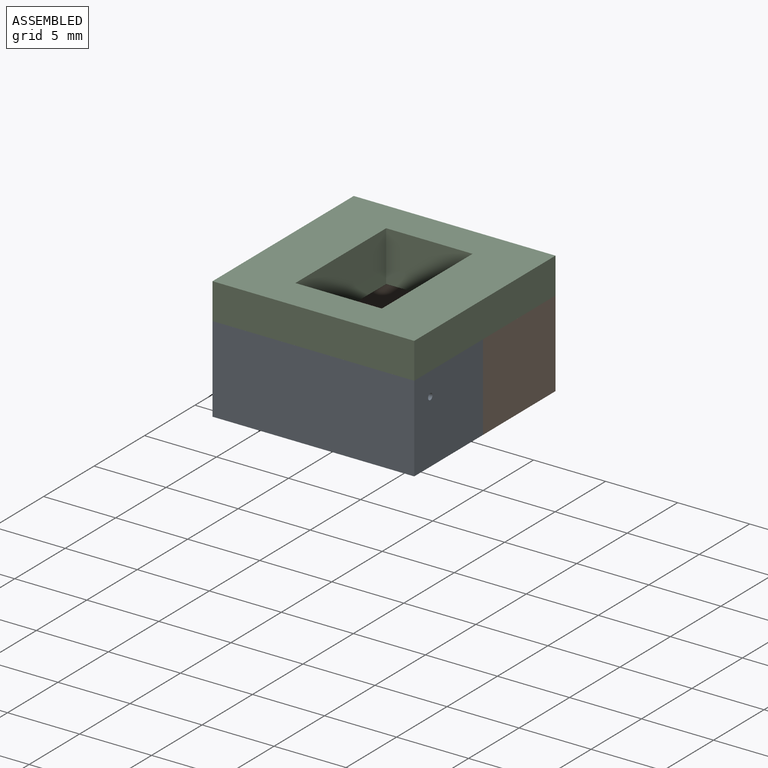
[diagram: assembled view]
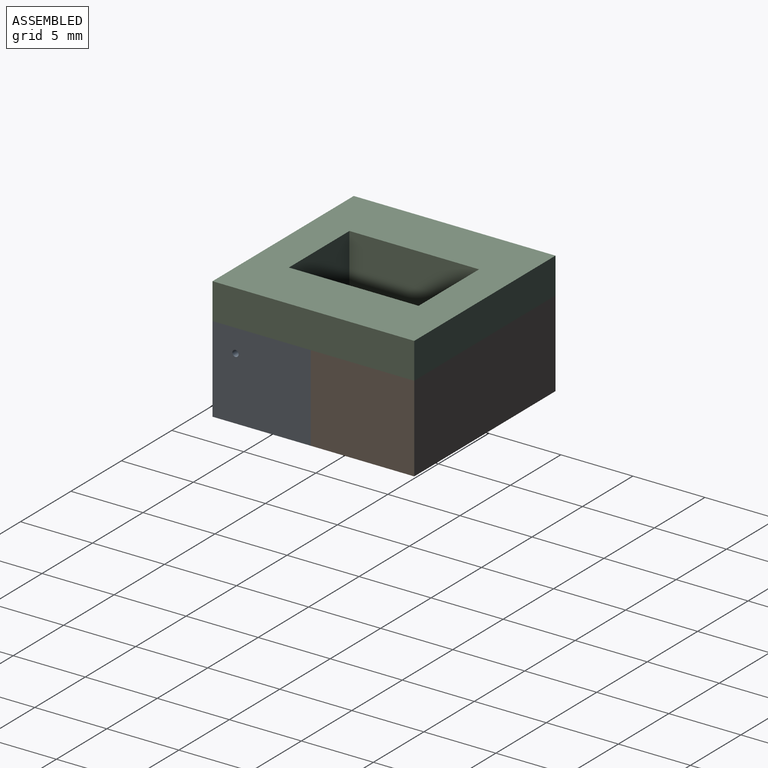
[diagram: assembled view, second angle]
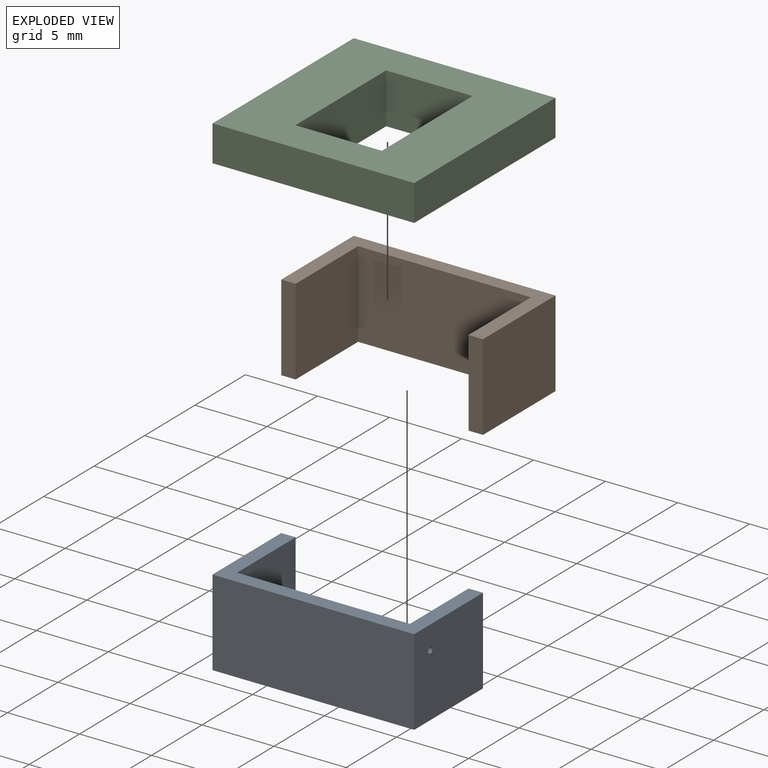
[diagram: exploded view]
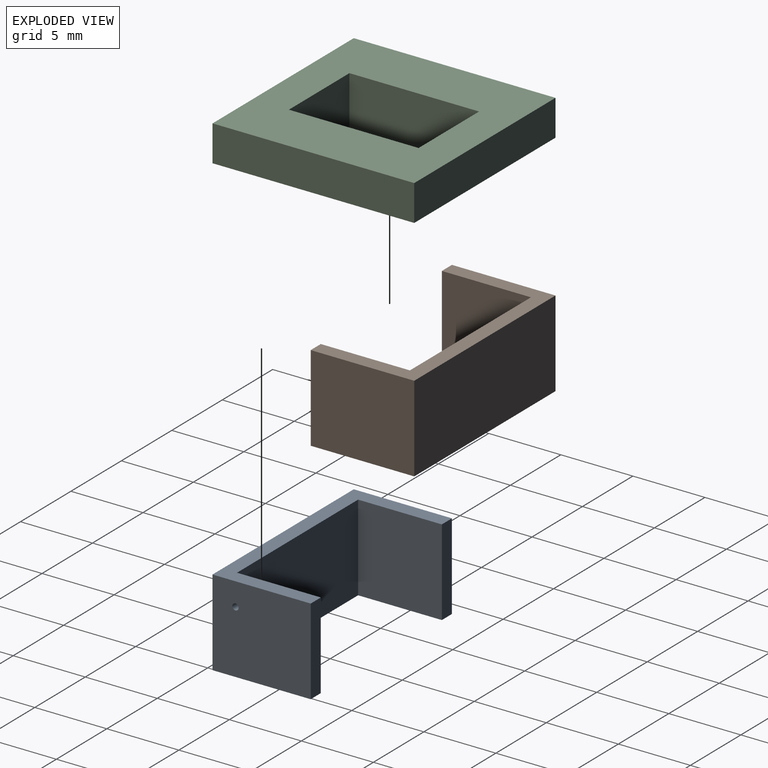
[diagram: exploded view, second angle]
ASSEMBLY  parts=3 mates=2
PART A: 11 faces, bbox 14x6.8x6 mm
  f0: plane 14x6mm, normal (0,-1,0), area 84mm2, adj f2,f5,f6,f7
  f1: plane 12x6mm, normal (0,1,0), area 72mm2, adj f3,f4,f6,f7
  f2: plane 6.81x6mm, normal (1,0,0), area 40.7mm2, adj f0,f6,f7,f9,f10
  f3: plane 6x5.81mm, normal (-1,0,0), area 34.7mm2, adj f1,f6,f7,f9,f10
  f4: plane 6x5.81mm, normal (1,0,0), area 34.9mm2, adj f1,f6,f7,f8
  f5: plane 6.81x6mm, normal (-1,0,0), area 40.9mm2, adj f0,f6,f7,f8
  f6: plane 14x6.81mm, normal (0,0,-1), area 25.6mm2, adj f0,f1,f2,f3,f4,f5,f8,f9
  f7: plane 14x6.81mm, normal (0,0,1), area 25.6mm2, adj f0,f1,f2,f3,f4,f5,f8,f9
  f8: plane 6x1mm, normal (0,1,0), area 6mm2, adj f4,f5,f6,f7
  f9: plane 6x1mm, normal (0,1,0), area 6mm2, adj f2,f3,f6,f7
  f10: cylinder r=0.22mm len=1mm, axis (-1,0,0), area 1.4mm2, adj f2,f3
PART B: 10 faces, bbox 14x7.2x6 mm
  f0: plane 14x7.19mm, normal (0,0,1), area 26.4mm2, adj f2,f3,f4,f5,f6,f7,f8,f9
  f1: plane 14x7.19mm, normal (0,0,-1), area 26.4mm2, adj f2,f3,f4,f5,f6,f7,f8,f9
  f2: plane 7.19x6mm, normal (1,0,0), area 43.1mm2, adj f0,f1,f6,f9
  f3: plane 7.19x6mm, normal (-1,0,0), area 43.1mm2, adj f0,f1,f6,f8
  f4: plane 6.19x6mm, normal (-1,0,0), area 37.1mm2, adj f0,f1,f7,f9
  f5: plane 6.19x6mm, normal (1,0,0), area 37.1mm2, adj f0,f1,f7,f8
  f6: plane 14x6mm, normal (0,1,0), area 84mm2, adj f0,f1,f2,f3
  f7: plane 12x6mm, normal (0,-1,0), area 72mm2, adj f0,f1,f4,f5
  f8: plane 6x1mm, normal (0,-1,0), area 6mm2, adj f0,f1,f3,f5
  f9: plane 6x1mm, normal (0,-1,0), area 6mm2, adj f0,f1,f2,f4
PART C: 20 faces, bbox 14x14x3.5 mm
  f0: plane 9.02x1mm, normal (-1,0,0), area 9mm2, adj f2,f4,f6,f15
  f1: plane 9.52x1mm, normal (1,0,0), area 9.5mm2, adj f3,f5,f6,f19
  f2: plane 6x1mm, normal (0,1,0), area 6mm2, adj f0,f6,f7,f16
  f3: plane 6.5x1mm, normal (0,-1,0), area 6.5mm2, adj f1,f6,f8,f19
  f4: plane 6.01x1.01mm, normal (0,-1,0), area 6mm2, adj f0,f6,f7,f9,f14
  f5: plane 6.5x1mm, normal (0,1,0), area 6.5mm2, adj f1,f6,f8,f19
  f6: plane 9.52x6.5mm, normal (0,0,-1), area 7.8mm2, adj f0,f1,f2,f3,f4,f5,f7,f8
  f7: plane 9x1mm, normal (1,0,0), area 9mm2, adj f2,f4,f6,f13
  f8: plane 9.49x1mm, normal (-1,0,0), area 9.5mm2, adj f3,f5,f6,f19
  f9: plane 4.59x0.02mm, normal (0,0,-1), area 0mm2, adj f4,f14
  f10: plane 14x2.5mm, normal (0,-1,0), area 35mm2, adj f11,f17,f18,f19
  f11: plane 14x2.5mm, normal (1,0,0), area 35mm2, adj f10,f12,f18,f19
  f12: plane 14x2.5mm, normal (0,1,0), area 35mm2, adj f11,f17,f18,f19
  f13: plane 9x2.5mm, normal (1,0,0), area 22.5mm2, adj f7,f14,f16,f18
  f14: plane 6.01x2.51mm, normal (0,-1,0), area 15mm2, adj f4,f9,f13,f15,f18
  f15: plane 9x2.5mm, normal (-1,0,0), area 22.5mm2, adj f0,f14,f16,f18
  f16: plane 6x2.5mm, normal (0,1,0), area 15mm2, adj f2,f13,f15,f18
  f17: plane 14x2.5mm, normal (-1,0,0), area 35mm2, adj f10,f12,f18,f19
  f18: plane 14x14mm, normal (0,0,1), area 142mm2, adj f10,f11,f12,f13,f14,f15,f16,f17
  f19: plane 14x14mm, normal (0,0,-1), area 134.2mm2, adj f1,f3,f5,f8,f10,f11,f12,f17
PLACE A t=(0,7.62,-0.64)mm
PLACE B t=(0,-0.08,-0.64)mm
PLACE C t=(5.67,0.8,5.36)mm
MATE fastened A.f7 <-> B.f0  axis (0,0,-1) through (-7.33,7.62,5.36)mm
MATE fastened C.f19 <-> A.f7  axis (0,0,-1) through (5.67,0.8,5.36)mm
